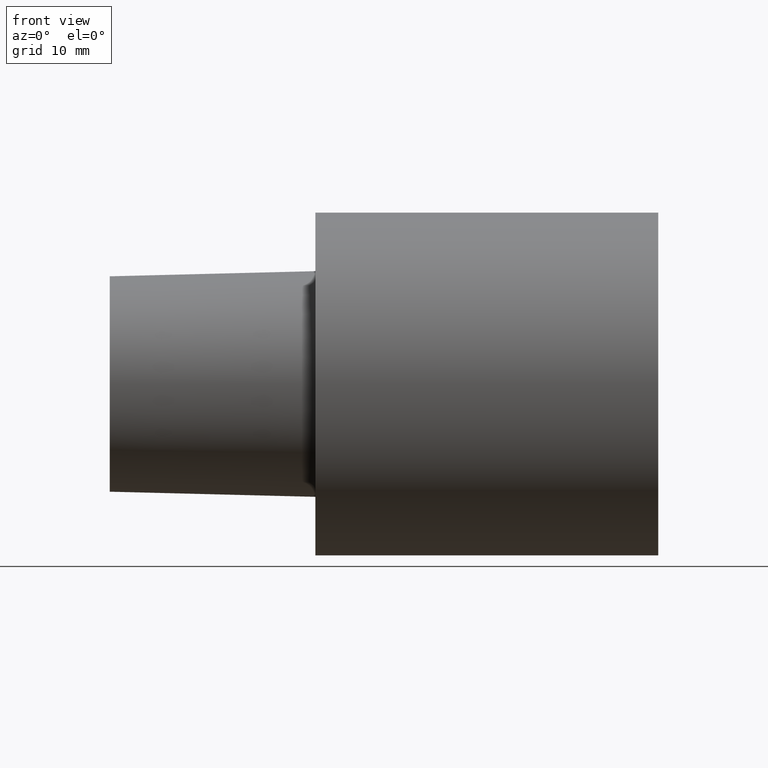
[diagram: clean part render]
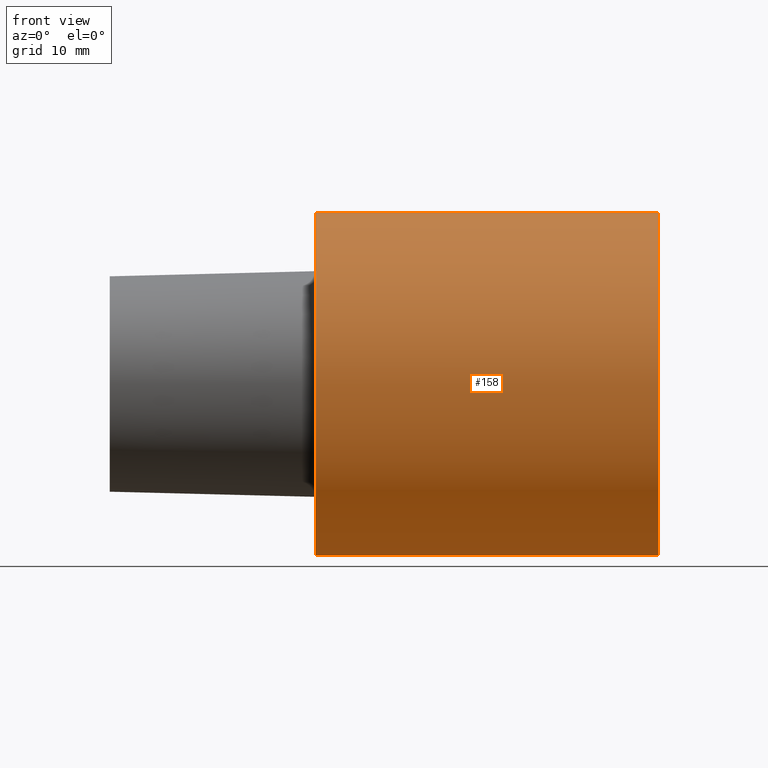
[diagram: same view with one face highlighted and labeled with its STEP entity id]
A machine part, front view. The second image highlights one B-rep face of the part: STEP entity #158.
In plain terms, the highlighted cylindrical surface (partial cylindrical patch) has radius 25 mm, axis along (-1, 0, 0).
Its self-contained STEP definition (entity closure, byte-faithful):
#11 = FACE_OUTER_BOUND ( 'NONE', #47, .T. ) ;
#16 = DIRECTION ( 'NONE',  ( 0.000000000000000000, 0.000000000000000000, 1.000000000000000000 ) ) ;
#19 = LINE ( 'NONE', #162, #45 ) ;
#28 = VERTEX_POINT ( 'NONE', #214 ) ;
#32 = CARTESIAN_POINT ( 'NONE',  ( -29.99999996940000102, 0.000000000000000000, 0.000000000000000000 ) ) ;
#35 = CARTESIAN_POINT ( 'NONE',  ( 0.000000000000000000, 3.061616994745535943E-15, -24.99999997449999967 ) ) ;
#36 = LINE ( 'NONE', #131, #41 ) ;
#41 = VECTOR ( 'NONE', #127, 1000.000000000000000 ) ;
#45 = VECTOR ( 'NONE', #77, 1000.000000000000000 ) ;
#47 = EDGE_LOOP ( 'NONE', ( #119, #186, #48, #242 ) ) ;
#48 = ORIENTED_EDGE ( 'NONE', *, *, #245, .T. ) ;
#62 = DIRECTION ( 'NONE',  ( 0.000000000000000000, 0.000000000000000000, 1.000000000000000000 ) ) ;
#67 = EDGE_CURVE ( 'NONE', #28, #113, #179, .T. ) ;
#73 = DIRECTION ( 'NONE',  ( -1.000000000000000000, 0.000000000000000000, 0.000000000000000000 ) ) ;
#74 = CARTESIAN_POINT ( 'NONE',  ( 49.99999994899999933, 0.000000000000000000, 24.99999997449999967 ) ) ;
#77 = DIRECTION ( 'NONE',  ( -1.000000000000000000, 0.000000000000000000, 0.000000000000000000 ) ) ;
#78 = CIRCLE ( 'NONE', #145, 24.99999997449999967 ) ;
#93 = DIRECTION ( 'NONE',  ( -1.000000000000000000, 0.000000000000000000, 0.000000000000000000 ) ) ;
#99 = AXIS2_PLACEMENT_3D ( 'NONE', #247, #73, #16 ) ;
#108 = DIRECTION ( 'NONE',  ( -1.000000000000000000, 0.000000000000000000, 0.000000000000000000 ) ) ;
#111 = DIRECTION ( 'NONE',  ( 0.000000000000000000, 0.000000000000000000, 1.000000000000000000 ) ) ;
#113 = VERTEX_POINT ( 'NONE', #74 ) ;
#119 = ORIENTED_EDGE ( 'NONE', *, *, #137, .F. ) ;
#127 = DIRECTION ( 'NONE',  ( -1.000000000000000000, 0.000000000000000000, 0.000000000000000000 ) ) ;
#131 = CARTESIAN_POINT ( 'NONE',  ( -29.99999996940000102, 3.061616994745535943E-15, -24.99999997449999967 ) ) ;
#134 = AXIS2_PLACEMENT_3D ( 'NONE', #32, #108, #62 ) ;
#137 = EDGE_CURVE ( 'NONE', #28, #156, #36, .T. ) ;
#142 = EDGE_CURVE ( 'NONE', #156, #172, #78, .T. ) ;
#145 = AXIS2_PLACEMENT_3D ( 'NONE', #213, #93, #111 ) ;
#156 = VERTEX_POINT ( 'NONE', #35 ) ;
#158 = ADVANCED_FACE ( 'NONE', ( #11 ), #211, .T. ) ;
#162 = CARTESIAN_POINT ( 'NONE',  ( -29.99999996940000102, 0.000000000000000000, 24.99999997449999967 ) ) ;
#172 = VERTEX_POINT ( 'NONE', #220 ) ;
#179 = CIRCLE ( 'NONE', #99, 24.99999997449999967 ) ;
#186 = ORIENTED_EDGE ( 'NONE', *, *, #67, .T. ) ;
#211 = CYLINDRICAL_SURFACE ( 'NONE', #134, 24.99999997449999967 ) ;
#213 = CARTESIAN_POINT ( 'NONE',  ( 0.000000000000000000, 0.000000000000000000, 0.000000000000000000 ) ) ;
#214 = CARTESIAN_POINT ( 'NONE',  ( 49.99999994899999933, 3.061616994745535943E-15, -24.99999997449999967 ) ) ;
#220 = CARTESIAN_POINT ( 'NONE',  ( 0.000000000000000000, 0.000000000000000000, 24.99999997449999967 ) ) ;
#242 = ORIENTED_EDGE ( 'NONE', *, *, #142, .F. ) ;
#245 = EDGE_CURVE ( 'NONE', #113, #172, #19, .T. ) ;
#247 = CARTESIAN_POINT ( 'NONE',  ( 49.99999994899999933, 0.000000000000000000, 0.000000000000000000 ) ) ;